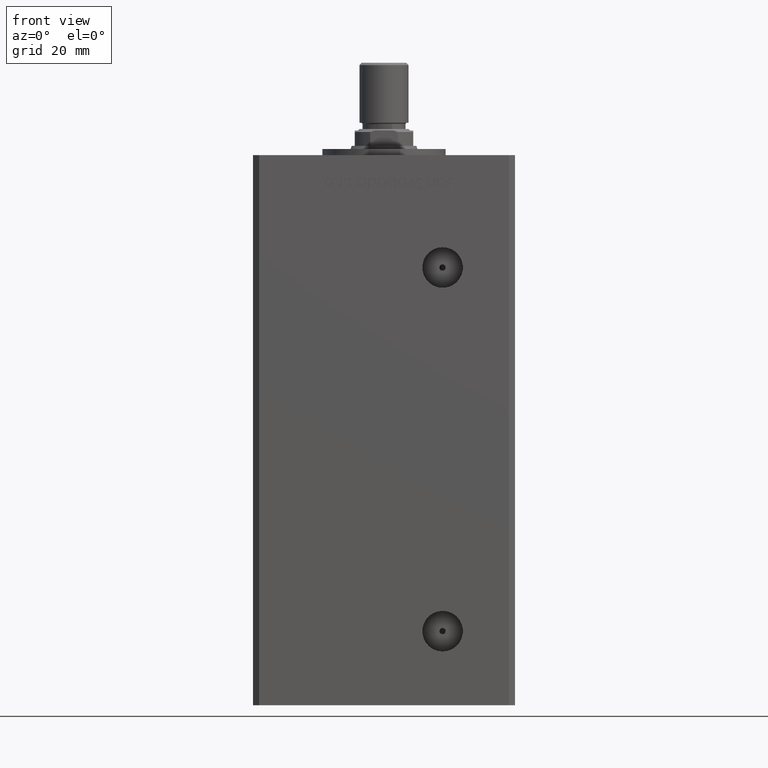
[diagram: clean part render]
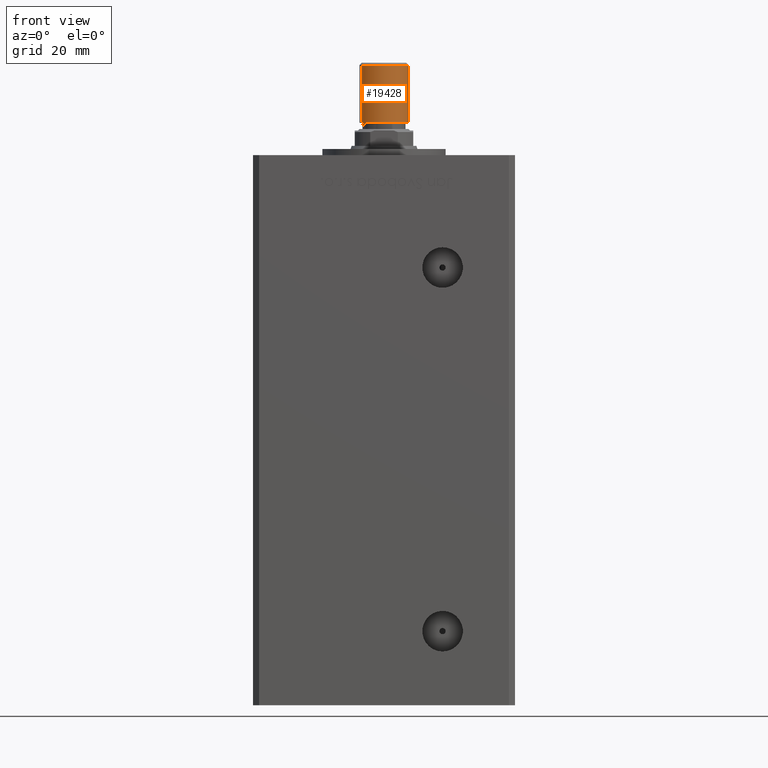
[diagram: same view with one face highlighted and labeled with its STEP entity id]
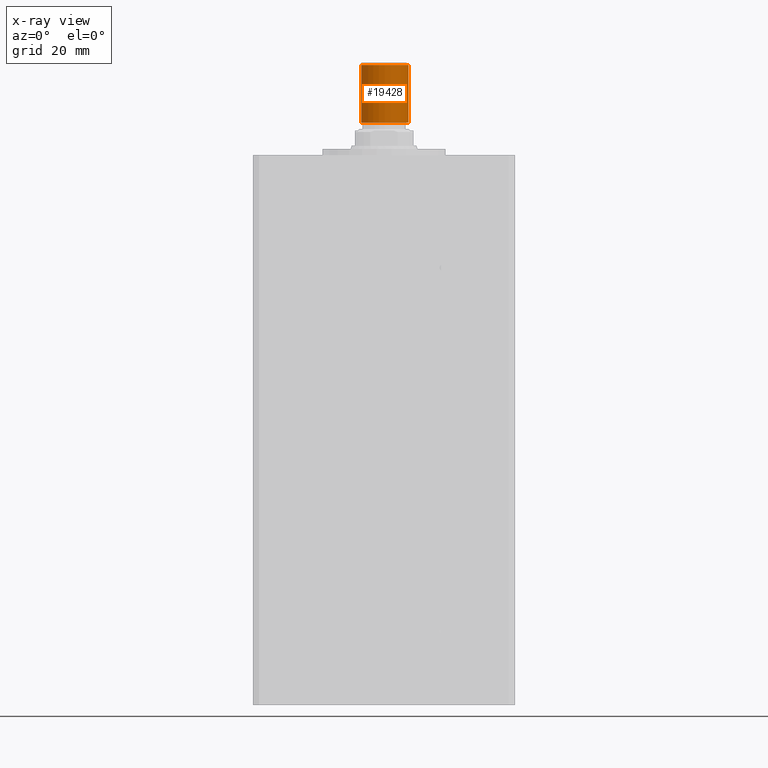
[diagram: x-ray of the same camera — body ghosted, the highlighted face saturated]
A machine part, front view. The second image highlights one B-rep face of the part: STEP entity #19428.
The next image is the same camera in x-ray: the body ghosted, the highlighted face saturated — about 0% of this face is hidden behind the body in this view.
In plain terms, the highlighted cylindrical surface (edge-blend (fillet) strip) has radius 8 mm, axis along (0, 0, 1).
Its self-contained STEP definition (entity closure, byte-faithful):
#1275 = CARTESIAN_POINT ( 'NONE',  ( 0.000000000000000000, 0.000000000000000000, 19.50000000000000000 ) ) ;
#1453 = VERTEX_POINT ( 'NONE', #14913 ) ;
#1783 = CIRCLE ( 'NONE', #18684, 8.000000000000000000 ) ;
#1993 = CIRCLE ( 'NONE', #29078, 8.000000000000000000 ) ;
#2217 = EDGE_CURVE ( 'NONE', #51534, #22635, #1783, .T. ) ;
#2286 = CARTESIAN_POINT ( 'NONE',  ( -8.000000000000000000, 0.000000000000000000, 19.50000000000000000 ) ) ;
#4936 = CARTESIAN_POINT ( 'NONE',  ( 0.000000000000000000, 0.000000000000000000, 0.8000000000000055955 ) ) ;
#6321 = DIRECTION ( 'NONE',  ( -0.000000000000000000, -0.000000000000000000, -1.000000000000000000 ) ) ;
#7995 = VECTOR ( 'NONE', #6321, 1000.000000000000000 ) ;
#8916 = DIRECTION ( 'NONE',  ( -0.000000000000000000, -0.000000000000000000, 1.000000000000000000 ) ) ;
#8926 = AXIS2_PLACEMENT_3D ( 'NONE', #1275, #17164, #36800 ) ;
#11140 = VERTEX_POINT ( 'NONE', #2286 ) ;
#13852 = CARTESIAN_POINT ( 'NONE',  ( -8.000000000000000000, 0.000000000000000000, 19.50000000000000000 ) ) ;
#14310 = ORIENTED_EDGE ( 'NONE', *, *, #37586, .T. ) ;
#14913 = CARTESIAN_POINT ( 'NONE',  ( 8.000000000000000000, 9.797174393178825657E-16, 19.50000000000000000 ) ) ;
#17164 = DIRECTION ( 'NONE',  ( -0.000000000000000000, -0.000000000000000000, -1.000000000000000000 ) ) ;
#18684 = AXIS2_PLACEMENT_3D ( 'NONE', #4936, #8916, #41239 ) ;
#19428 = ADVANCED_FACE ( 'NONE', ( #48732 ), #41547, .T. ) ;
#22635 = VERTEX_POINT ( 'NONE', #26530 ) ;
#26497 = EDGE_CURVE ( 'NONE', #11140, #1453, #1993, .T. ) ;
#26530 = CARTESIAN_POINT ( 'NONE',  ( 8.000000000000000000, 9.797174393178825657E-16, 0.8000000000000055955 ) ) ;
#27200 = DIRECTION ( 'NONE',  ( 1.000000000000000000, 0.000000000000000000, 0.000000000000000000 ) ) ;
#28818 = EDGE_CURVE ( 'NONE', #1453, #22635, #38650, .T. ) ;
#29078 = AXIS2_PLACEMENT_3D ( 'NONE', #40444, #51602, #27200 ) ;
#30788 = EDGE_LOOP ( 'NONE', ( #40321, #40886, #14310, #33522 ) ) ;
#33522 = ORIENTED_EDGE ( 'NONE', *, *, #2217, .T. ) ;
#35182 = VECTOR ( 'NONE', #42205, 1000.000000000000000 ) ;
#36800 = DIRECTION ( 'NONE',  ( -1.000000000000000000, 0.000000000000000000, 0.000000000000000000 ) ) ;
#37586 = EDGE_CURVE ( 'NONE', #11140, #51534, #41946, .T. ) ;
#38650 = LINE ( 'NONE', #42614, #7995 ) ;
#40321 = ORIENTED_EDGE ( 'NONE', *, *, #28818, .F. ) ;
#40444 = CARTESIAN_POINT ( 'NONE',  ( 0.000000000000000000, 0.000000000000000000, 19.50000000000000000 ) ) ;
#40886 = ORIENTED_EDGE ( 'NONE', *, *, #26497, .F. ) ;
#41239 = DIRECTION ( 'NONE',  ( 1.000000000000000000, 0.000000000000000000, 0.000000000000000000 ) ) ;
#41547 = CYLINDRICAL_SURFACE ( 'NONE', #8926, 8.000000000000000000 ) ;
#41946 = LINE ( 'NONE', #13852, #35182 ) ;
#42205 = DIRECTION ( 'NONE',  ( -0.000000000000000000, -0.000000000000000000, -1.000000000000000000 ) ) ;
#42614 = CARTESIAN_POINT ( 'NONE',  ( 8.000000000000000000, 9.797174393178825657E-16, 19.50000000000000000 ) ) ;
#43468 = CARTESIAN_POINT ( 'NONE',  ( -8.000000000000000000, 0.000000000000000000, 0.8000000000000055955 ) ) ;
#48732 = FACE_OUTER_BOUND ( 'NONE', #30788, .T. ) ;
#51534 = VERTEX_POINT ( 'NONE', #43468 ) ;
#51602 = DIRECTION ( 'NONE',  ( 0.000000000000000000, 0.000000000000000000, 1.000000000000000000 ) ) ;